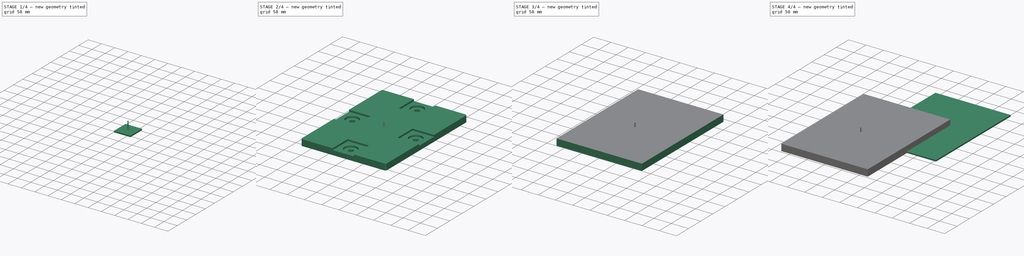
[diagram: build sequence overview — one tinted view per stage of 4, left to right]
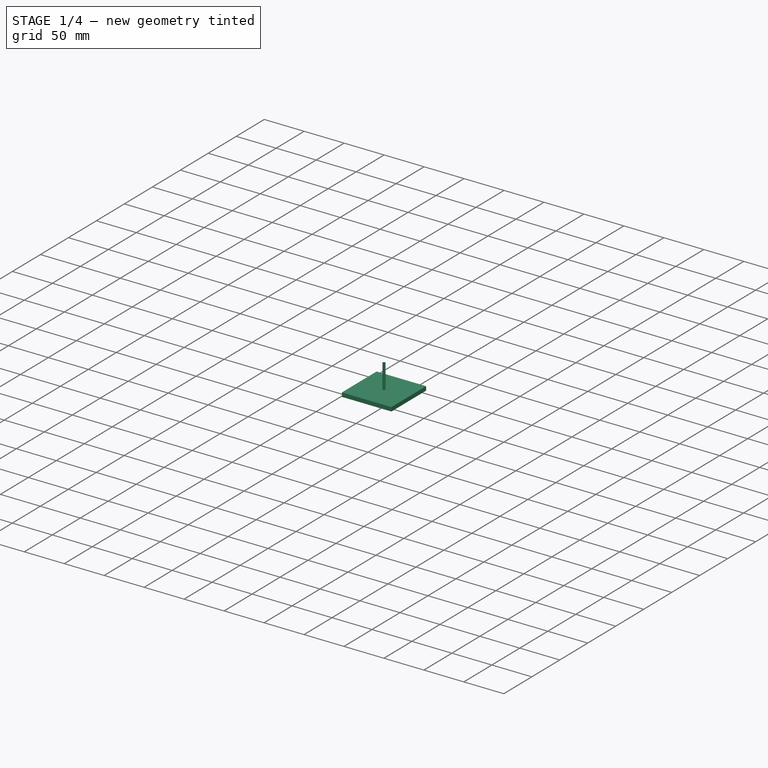
[diagram: stage 1 of 4 — iso view after this stage's code; geometry added in this stage tinted green]
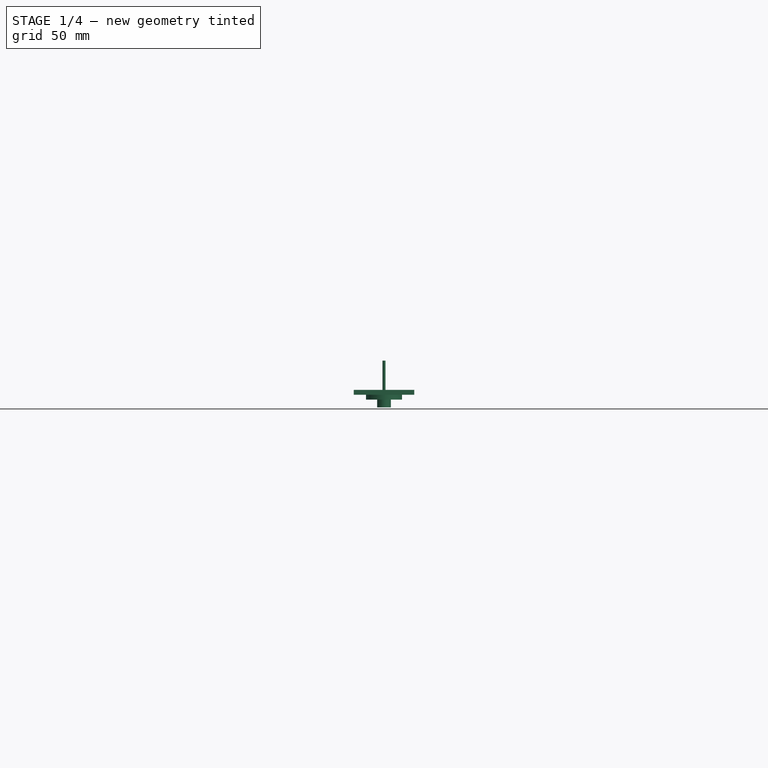
[diagram: stage 1 of 4 — front view after this stage's code; geometry added in this stage tinted green]
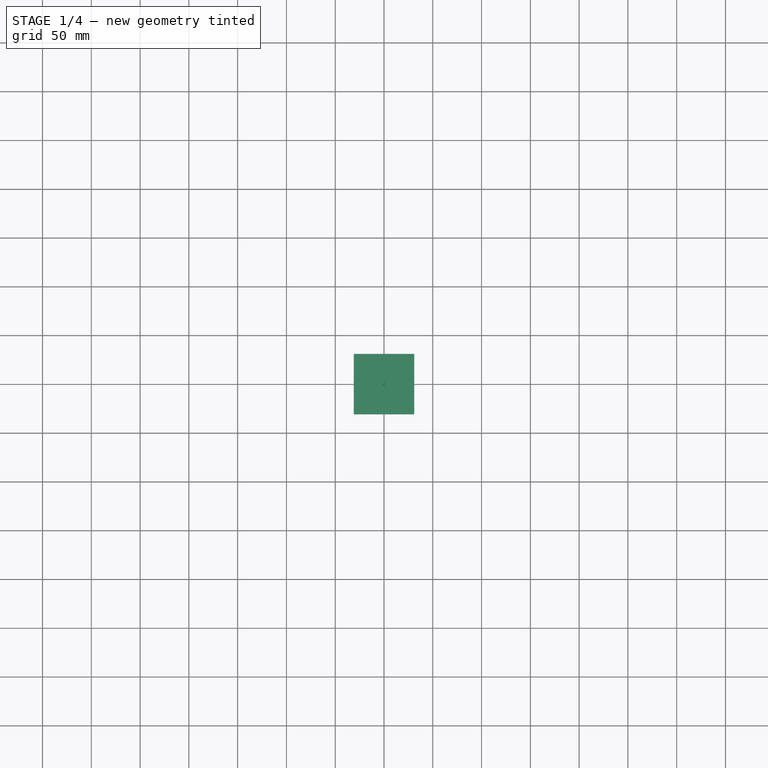
[diagram: stage 1 of 4 — top view after this stage's code; geometry added in this stage tinted green]
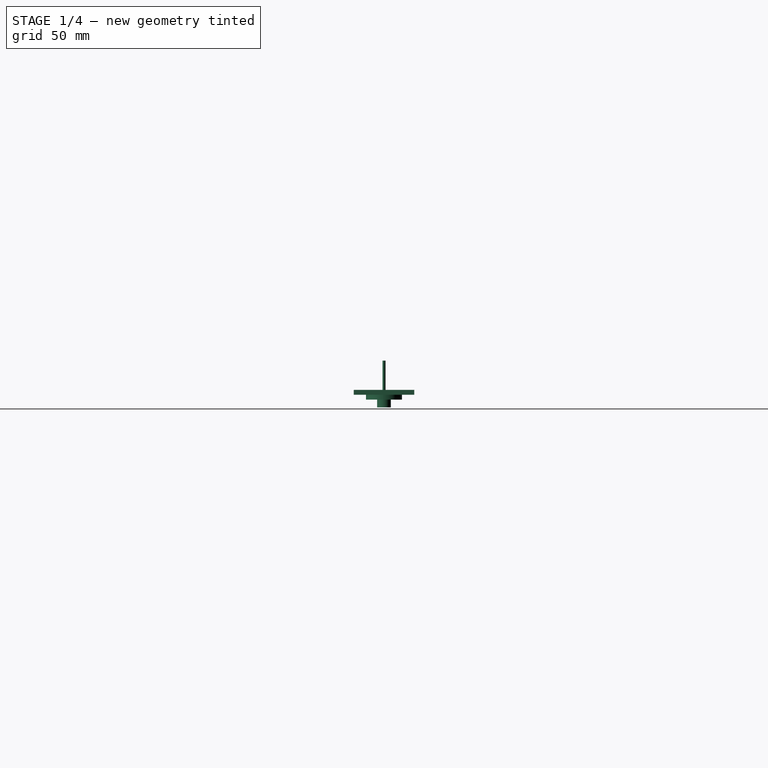
[diagram: stage 1 of 4 — right view after this stage's code; geometry added in this stage tinted green]
FCSTD DOCUMENT  (FreeCAD 0.21R32532 (Git))
Label: Крепеж_аккумулятора
License: All rights reserved
LicenseURL: http://en.wikipedia.org/wiki/All_rights_reserved
objects: Path::FeaturePython×14, Part::FeaturePython×13, App::DocumentObjectGroup×6, Sketcher::SketchObject×5, PartDesign::Pad×3, PartDesign::Body×3, Part::Mirroring×2, Part::Compound×2, PartDesign::SubShapeBinder×2, App::FeaturePython×2, PartDesign::Revolution×1, PartDesign::Boolean×1, PartDesign::Hole×1
note: 44 computed .brp shape members not serialized (recipe doc carries the construction recipe); baked Part::Feature solids carry a one-line shape summary decoded from their .brp

FEATURE [Sketcher::SketchObject] Sketch001
  FullyConstrained = true
  MapMode = 5
  Support = -> [XY_Plane001]
  sketch-geometry (5):
    g0: LineSegment StartX=-31 StartY=-31 StartZ=0 EndX=-31 EndY=31 EndZ=0
    g1: LineSegment StartX=-31 StartY=31 StartZ=0 EndX=31 EndY=31 EndZ=0
    g2: LineSegment StartX=31 StartY=31 StartZ=0 EndX=31 EndY=-31 EndZ=0
    g3: LineSegment StartX=31 StartY=-31 StartZ=0 EndX=-31 EndY=-31 EndZ=0
    g4: GeomPoint X=0 Y=0 Z=0
  constraints (12):
    c: Coincident(g0,g1)
    c: Coincident(g1,g2)
    c: Coincident(g2,g3)
    c: Coincident(g3,g0)
    c: Horizontal(g1)
    c: Horizontal(g3)
    c: Vertical(g0)
    c: Vertical(g2)
    c: Symmetric(g1,g0,g4)
    c: Coincident(g4,g-1)
    c: DistanceX(g1,g1) = 62
    c: Equal(g2,g1)
FEATURE [PartDesign::Pad] Pad001
  Direction = (0,0,1)
  Length = 5
  Length2 = 10
  Profile = -> Sketch001
  ReferenceAxis = -> Sketch001 [N_Axis]
  Reversed = true
  Type = 0
FEATURE [Sketcher::SketchObject] Sketch002
  FullyConstrained = true
  MapMode = 5
  Placement = pos=(0,0,0) rot=(1,0,0;1.5708rad)
  Support = -> [XZ_Plane001]
  sketch-geometry (6):
    g0: LineSegment StartX=0 StartY=9.1482e-12 StartZ=0 EndX=18.5 EndY=9.1482e-12 EndZ=0
    g1: LineSegment StartX=7 StartY=-18 StartZ=0 EndX=0 EndY=-18 EndZ=0
    g2: LineSegment StartX=0 StartY=-18 StartZ=0 EndX=0 EndY=9.1482e-12 EndZ=0
    g3: LineSegment StartX=18.5 StartY=9.1482e-12 StartZ=0 EndX=18.5 EndY=-10 EndZ=0
    g4: LineSegment StartX=18.5 StartY=-10 StartZ=0 EndX=7 EndY=-10 EndZ=0
    g5: LineSegment StartX=7 StartY=-10 StartZ=0 EndX=7 EndY=-18 EndZ=0
  constraints (17):
    c: Coincident(g0,g3)
    c: Coincident(g5,g1)
    c: Coincident(g1,g2)
    c: Coincident(g2,g0)
    c: Horizontal(g0)
    c: Horizontal(g1)
    c: Vertical(g2)
    c: Coincident(g0,g-1)
    c: Coincident(g3,g4)
    c: Vertical(g3)
    c: Coincident(g4,g5)
    c: Vertical(g5)
    c: Horizontal(g4)
    c: DistanceX(g4) = 7
    c: DistanceX(g3) = 18.5
    c: DistanceY(g1) = -18
    c: DistanceY(g3,g3) = -10
FEATURE [PartDesign::Revolution] Revolution
  Angle = 360
  Axis = (0,-2e-16,1)
  Base = (0,0,0)
  BaseFeature = -> Pad001
  Profile = -> Sketch002
  ReferenceAxis = -> Sketch002 [V_Axis]
  Reversed = true
FEATURE [App::DocumentObjectGroup] Model001
  Group = -> [Clone001]
FEATURE [Part::FeaturePython] ToolBit001  label="3.175mm Endmill003"  # Path/CAM toolbit (typed FeaturePython)
  BitPropertyNames = Chipload | CuttingEdgeHeight | Diameter | Flutes | Length | Material | ShankDiameter | SpindleDirection
  BitShape = <path>
  Chipload = 0
  CuttingEdgeHeight = 30
  Diameter = 3.17
  Flutes = 0
  Length = 10
  Material = 0
  ShankDiameter = 3
  ShapeName = endmill
  SpindleDirection = 0
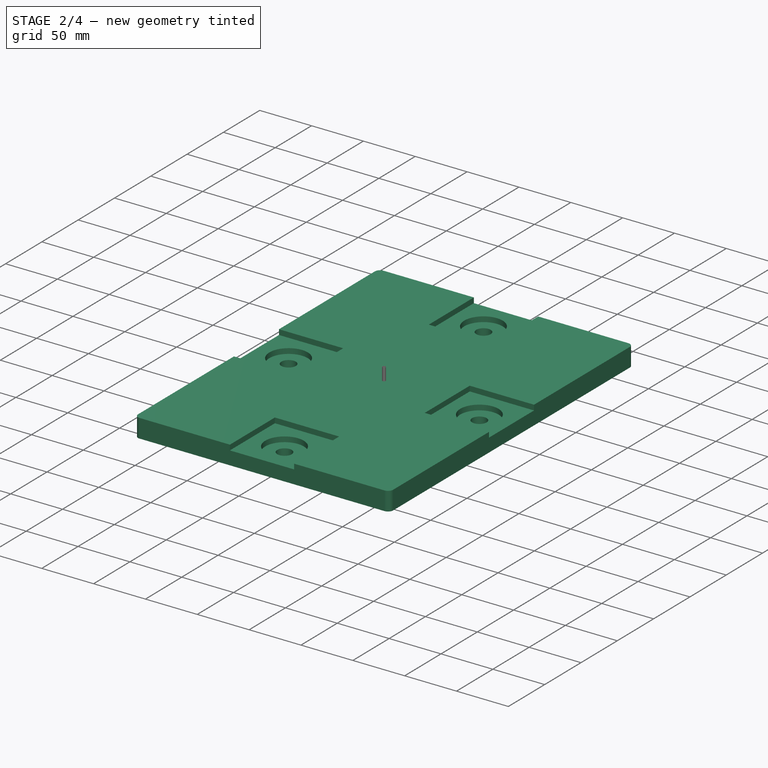
[diagram: stage 2 of 4 — iso view after this stage's code; geometry added in this stage tinted green]
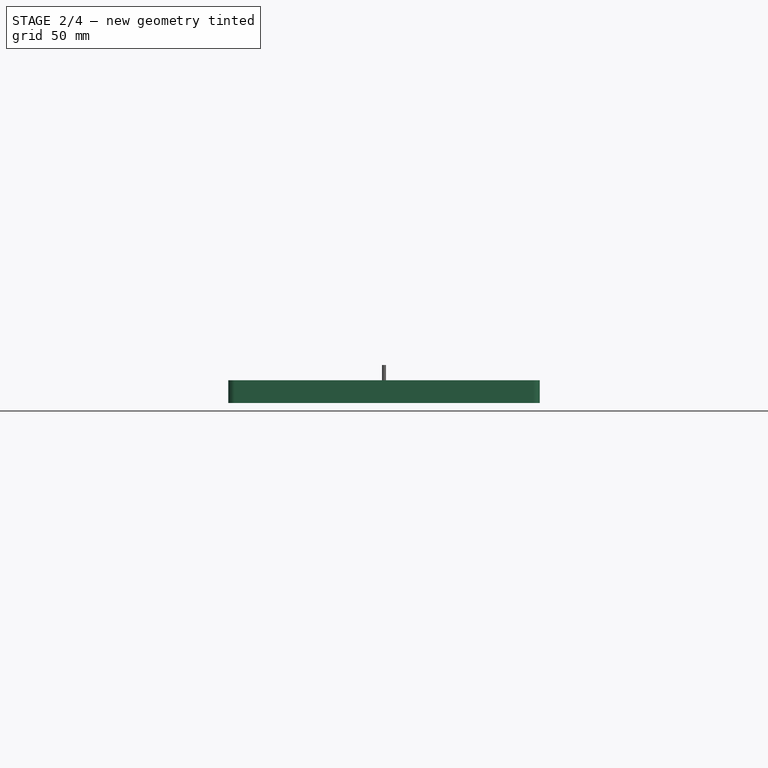
[diagram: stage 2 of 4 — front view after this stage's code; geometry added in this stage tinted green]
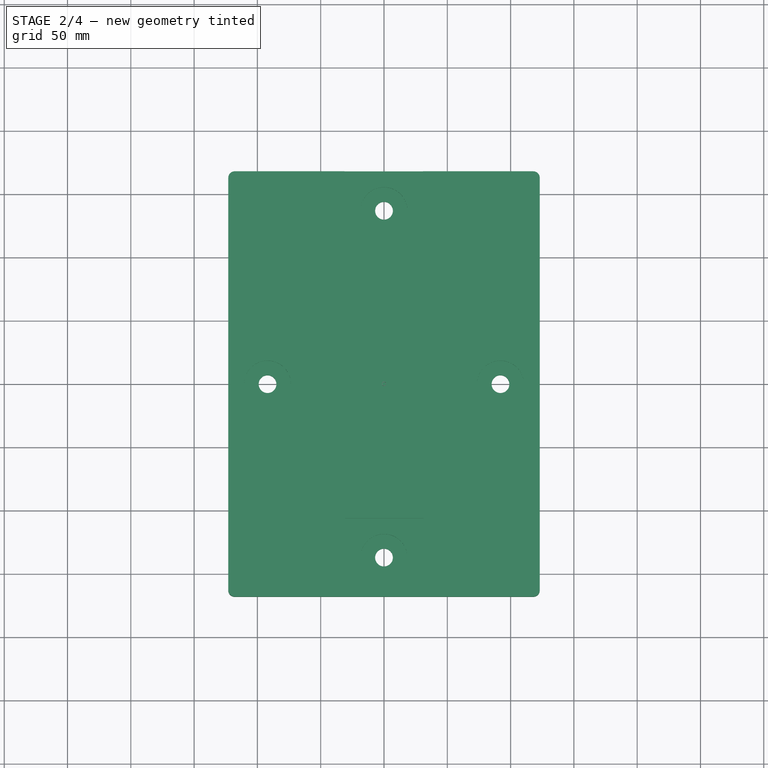
[diagram: stage 2 of 4 — top view after this stage's code; geometry added in this stage tinted green]
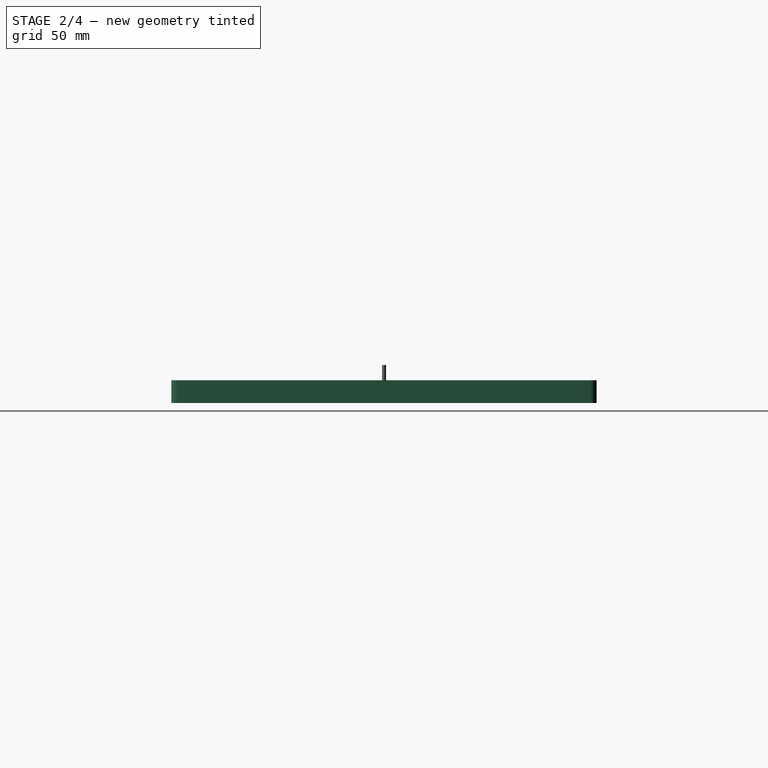
[diagram: stage 2 of 4 — right view after this stage's code; geometry added in this stage tinted green]
FEATURE [Sketcher::SketchObject] Sketch
  FullyConstrained = true
  MapMode = 5
  Support = -> [XY_Plane]
  sketch-geometry (10):
    g0: ArcOfCircle CenterX=-118 CenterY=-163 CenterZ=0 NormalX=0 NormalY=0 NormalZ=1 AngleXU=0 Radius=5 StartAngle=3.14159 EndAngle=4.71239
    g1: LineSegment StartX=-123 StartY=-163 StartZ=0 EndX=-123 EndY=163 EndZ=0
    g2: ArcOfCircle CenterX=-118 CenterY=163 CenterZ=0 NormalX=0 NormalY=0 NormalZ=1 AngleXU=0 Radius=5 StartAngle=1.5708 EndAngle=3.14159
    g3: LineSegment StartX=-118 StartY=168 StartZ=0 EndX=118 EndY=168 EndZ=0
    g4: ArcOfCircle CenterX=118 CenterY=163 CenterZ=0 NormalX=0 NormalY=0 NormalZ=1 AngleXU=0 Radius=5 StartAngle=-1.8e-15 EndAngle=1.5708
    g5: LineSegment StartX=123 StartY=163 StartZ=0 EndX=123 EndY=-163 EndZ=0
    g6: ArcOfCircle CenterX=118 CenterY=-163 CenterZ=0 NormalX=0 NormalY=0 NormalZ=1 AngleXU=0 Radius=5 StartAngle=4.71239 EndAngle=6.28319
    g7: LineSegment StartX=118 StartY=-168 StartZ=0 EndX=-118 EndY=-168 EndZ=0
    g8: GeomPoint X=-123 Y=-168 Z=0
    g9: GeomPoint X=123 Y=168 Z=0
  constraints (23):
    c: Tangent(g0,g1) = 1.5708
    c: Tangent(g1,g2) = 1.5708
    c: Tangent(g2,g3) = 1.5708
    c: Tangent(g3,g4) = 1.5708
    c: Tangent(g4,g5) = 1.5708
    c: Tangent(g5,g6) = 1.5708
    c: Tangent(g6,g7) = 1.5708
    c: Tangent(g7,g0) = 1.5708
    c: Horizontal(g3)
    c: Horizontal(g7)
    c: Vertical(g1)
    c: Vertical(g5)
    c: Equal(g0,g2)
    c: Equal(g2,g4)
    c: Equal(g4,g6)
    c: PointOnObject(g8,g1)
    c: PointOnObject(g8,g7)
    c: PointOnObject(g9,g3)
    c: PointOnObject(g9,g5)
    c: Symmetric(g9,g8,g-1)
    c: DistanceX(g8,g9) = 246
    c: DistanceY(g8,g9) = 336
    c: Radius(g4) = 5
FEATURE [PartDesign::Pad] Pad
  Direction = (0,0,1)
  Length = 18
  Length2 = 10
  Profile = -> Sketch
  ReferenceAxis = -> Sketch [N_Axis]
  Type = 0
FEATURE [PartDesign::Body] Body001
  Group = -> [Sketch001,Pad001,Sketch002,Revolution]
  Origin = -> Origin001
  Placement = pos=(0,0,18) rot=(0,0,1;0rad)
  Tip = -> Revolution
FEATURE [Part::FeaturePython] Placment  label="Custom"  # WARN: FeaturePython — macro-defined, semantics opaque (R4)
  ExposePlacement = true
  FlipZ = false
  Invert = false
  MarkerShape = 1
  MarkerSize = 20
  NumElements = 1
  Placement = pos=(92,0,0) rot=(0,0,1;0rad)
  PlacementChoice = 0
  Type = lattice2Placement.LatticePlacement
  isLattice = 1
FEATURE [Part::FeaturePython] Placment001  label="Custom001"  # WARN: FeaturePython — macro-defined, semantics opaque (R4)
  ExposePlacement = true
  FlipZ = false
  Invert = false
  MarkerShape = 1
  MarkerSize = 20
  NumElements = 1
  Placement = pos=(0,137,0) rot=(0,0,1;0rad)
  PlacementChoice = 0
  Type = lattice2Placement.LatticePlacement
  isLattice = 1
FEATURE [Part::FeaturePython] Join  # WARN: FeaturePython — macro-defined, semantics opaque (R4)
  ExposePlacement = false
  Interleave = false
  Links = -> [Placment,Placment001]
  MarkerShape = 1
  MarkerSize = 20
  NumElements = 2
  Type = lattice2JoinArrays.JoinArrays
  isLattice = 1
FEATURE [Part::FeaturePython] PolarArray  # WARN: FeaturePython — macro-defined, semantics opaque (R4)
  Alignment = 0
  AttacherType = Attacher::AttachEngine3D
  CellStart = A1
  Count = 2
  DistributionLaw = 0
  EndInclusive = false
  ExposePlacement = false
  FlipX = false
  FlipZ = false
  GeneratorMode = 0
  MarkerShape = 1
  MarkerSize = 0
  NumElements = 2
  OrientMode = 2
  Radius = 50
  Reverse = false
  SpanEnd = 360
  SpanStart = 0
  Step = 180
  Type = lattice2PolarArray2.PolarArray
  UseArcRadius = false
  UseArcRange = 0
  VSGVersion = 1
  Values = 0.0 | 180.0
  ValuesSource = 2
  isLattice = 1
FEATURE [Part::FeaturePython] Populate  label="Populate PolarArray with Join"  # WARN: FeaturePython — macro-defined, semantics opaque (R4)
  Copying = 0
  ExposePlacement = false
  MarkerShape = 1
  MarkerSize = 0
  NumElements = 4
  Object = -> Join
  OutputCompounding = 0
  PlacementsTo = -> PolarArray
  Referencing = 1
  Type = lattice2PopulateCopies.LatticePopulateCopies
  isLattice = 1
FEATURE [Part::FeaturePython] Populate001  label="Populate Populate PolarArray with Join with Body001"  # WARN: FeaturePython — macro-defined, semantics opaque (R4)
  Copying = 0
  ExposePlacement = false
  MarkerShape = 1
  MarkerSize = 0
  NumElements = 0
  Object = -> Body001
  OutputCompounding = 1
  PlacementsTo = -> Populate
  Referencing = 0
  Type = lattice2PopulateCopies.LatticePopulateCopies
  isLattice = 0
FEATURE [PartDesign::Boolean] Boolean
  BaseFeature = -> Pad
  Group = -> [Populate001]
  Type = 1
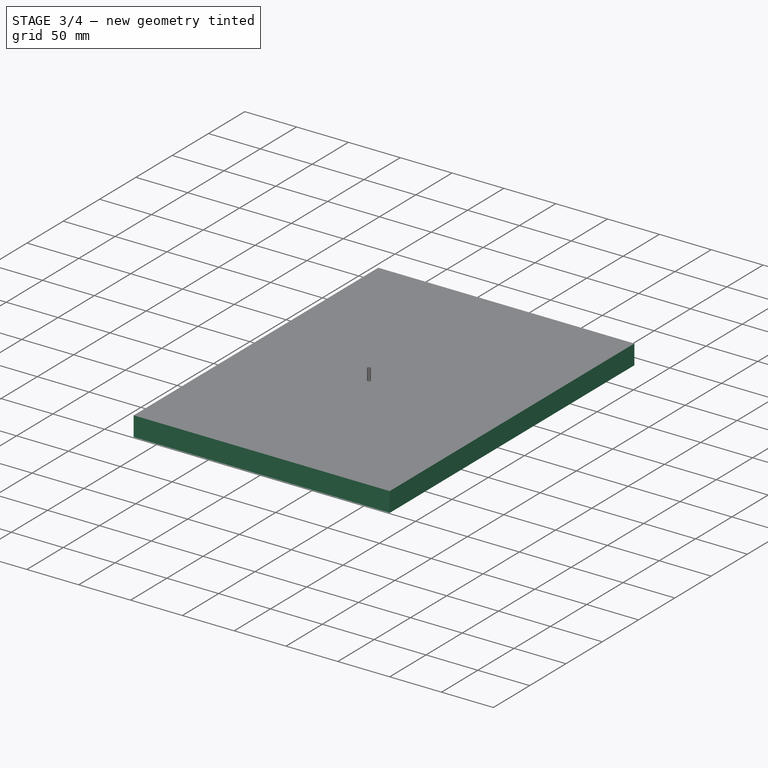
[diagram: stage 3 of 4 — iso view after this stage's code; geometry added in this stage tinted green]
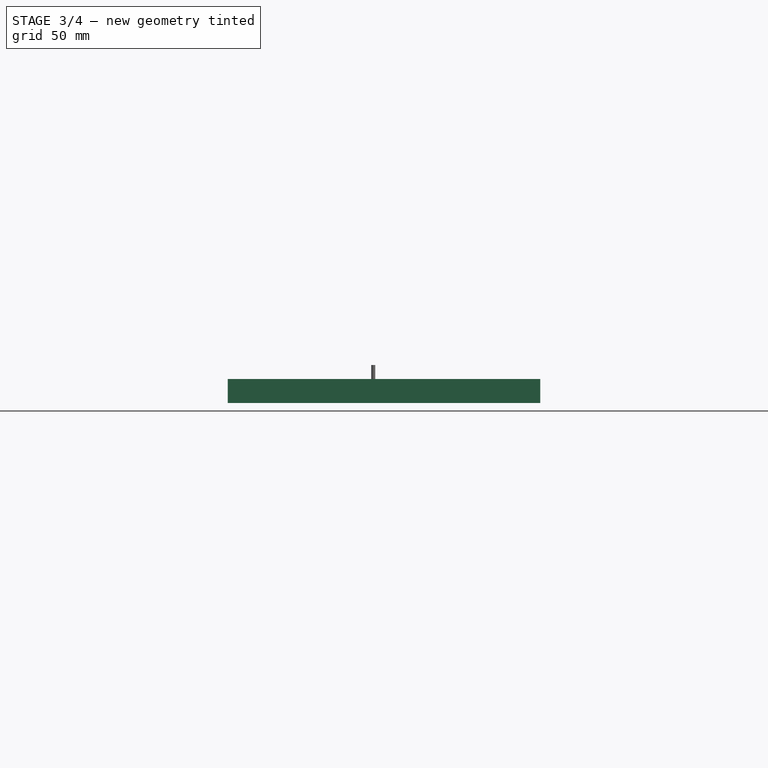
[diagram: stage 3 of 4 — front view after this stage's code; geometry added in this stage tinted green]
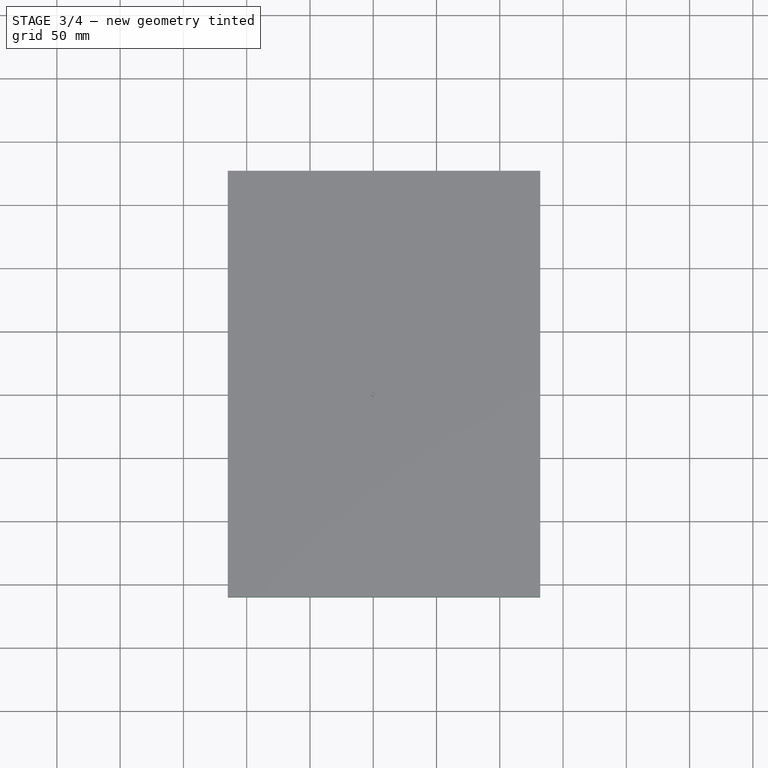
[diagram: stage 3 of 4 — top view after this stage's code; geometry added in this stage tinted green]
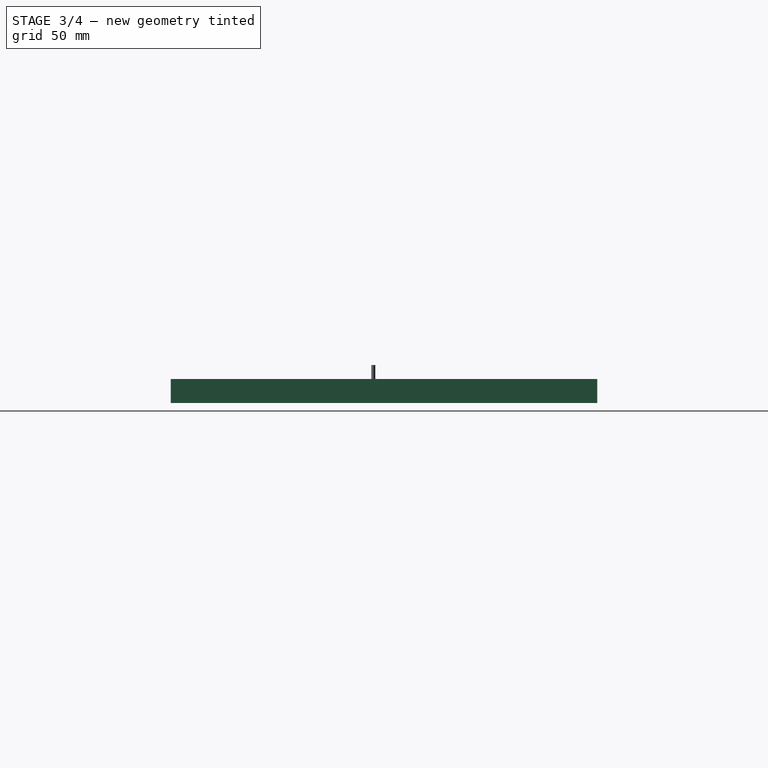
[diagram: stage 3 of 4 — right view after this stage's code; geometry added in this stage tinted green]
FEATURE [PartDesign::Body] Body
  Group = -> [Sketch,Pad,Boolean]
  Origin = -> Origin
  Tip = -> Boolean
FEATURE [Sketcher::SketchObject] Sketch004
  FullyConstrained = true
  sketch-geometry (1):
    g0: Circle CenterX=0 CenterY=0 CenterZ=0 NormalX=0 NormalY=0 NormalZ=1 AngleXU=0 Radius=7
  constraints (2):
    c: Coincident(g0,g-1)
    c: Diameter(g0) = 14
FEATURE [Part::FeaturePython] Populate002  label="Populate Populate PolarArray with Join with Sketch004"  # WARN: FeaturePython — macro-defined, semantics opaque (R4)
  Copying = 0
  ExposePlacement = false
  MarkerShape = 1
  MarkerSize = 0
  NumElements = 0
  Object = -> Sketch004
  OutputCompounding = 1
  PlacementsTo = -> Populate
  Referencing = 0
  Type = lattice2PopulateCopies.LatticePopulateCopies
  isLattice = 0
FEATURE [Sketcher::SketchObject] Sketch003
  ExternalGeometry = -> [Populate002]
  FullyConstrained = true
  sketch-geometry (12):
    g0: LineSegment StartX=0 StartY=152 StartZ=0 EndX=10 EndY=152 EndZ=0
    g1: LineSegment StartX=30 StartY=132 StartZ=0 EndX=30 EndY=80 EndZ=0
    g2: LineSegment StartX=40 StartY=70 StartZ=0 EndX=87 EndY=70 EndZ=0
    g3: LineSegment StartX=107 StartY=50 StartZ=0 EndX=107 EndY=0 EndZ=0
    g4: ArcOfCircle CenterX=10 CenterY=132 CenterZ=0 NormalX=0 NormalY=0 NormalZ=1 AngleXU=0 Radius=20 StartAngle=-3.6e-15 EndAngle=1.5708
    g5: GeomPoint X=30 Y=152 Z=0
    g6: ArcOfCircle CenterX=87 CenterY=50 CenterZ=0 NormalX=0 NormalY=0 NormalZ=1 AngleXU=0 Radius=20 StartAngle=-1.856e-13 EndAngle=1.5708
    g7: GeomPoint X=107 Y=70 Z=0
    g8: GeomPoint X=0 Y=-152 Z=0
    g9: GeomPoint X=-107 Y=0 Z=0
    g10: ArcOfCircle CenterX=40 CenterY=80 CenterZ=0 NormalX=0 NormalY=0 NormalZ=1 AngleXU=0 Radius=10 StartAngle=3.14159 EndAngle=4.71239
    g11: GeomPoint X=30 Y=70 Z=0
  constraints (27):
    c: PointOnObject(g0,g-2)
    c: Horizontal(g0)
    c: Vertical(g1)
    c: Horizontal(g2)
    c: PointOnObject(g3,g-1)
    c: Vertical(g3)
    c: PointOnObject(g5,g0)
    c: PointOnObject(g5,g1)
    c: Tangent(g0,g4) = 1.5708
    c: Tangent(g1,g4) = 1.5708
    c: PointOnObject(g7,g2)
    c: PointOnObject(g7,g3)
    c: Tangent(g2,g6) = 1.5708
    c: Tangent(g3,g6) = 1.5708
    c: Equal(g6,g4)
    c: Radius(g6) = 20
    c: Symmetric(g3,g9,g-2)
    c: Symmetric(g0,g8,g-1)
    c: PointOnObject(g11,g1)
    c: PointOnObject(g11,g2)
    c: Tangent(g1,g10) = -1.5708
    c: Tangent(g2,g10) = -1.5708
    c: Radius(g10) = 10
    c: DistanceX(g-3,g3) = 15
    c: DistanceY(g-4,g0) = 15
    c: DistanceY(g-3,g11) = 70
    c: DistanceX(g-4,g11) = 30
FEATURE [Part::Mirroring] Part__Mirroring  label="Sketch003 (Mirror #1)"
  Base = (0,0,0)
  Normal = (1,0,0)
  Source = -> Sketch003
FEATURE [Part::Compound] Compound
  Links = -> [Part__Mirroring,Sketch003]
FEATURE [Part::Mirroring] Part__Mirroring001  label="Compound (Mirror #2)"
  Base = (0,0,0)
  Normal = (0,1,0)
  Source = -> Compound
FEATURE [Part::Compound] Compound001
  Links = -> [Part__Mirroring001,Compound]
FEATURE [PartDesign::SubShapeBinder] Binder
  BindCopyOnChange = 0
  BindMode = 0
  ClaimChildren = true
  Context = -> Body002 [Binder.]
  Fuse = false
  MakeFace = true
  OffsetFill = false
  OffsetIntersection = false
  OffsetJoinType = 0
  OffsetOpenResult = false
  PartialLoad = false
  Relative = true
  Support = -> [Compound001]
  _Version = 2
FEATURE [PartDesign::Pad] Pad002
  Direction = (0,0,1)
  Length = 3
  Length2 = 10
  Profile = -> Binder
  Type = 0
FEATURE [App::DocumentObjectGroup] Model
  Group = -> [Clone]
FEATURE [Part::FeaturePython] ToolBit  label="3.175mm Endmill"  # Path/CAM toolbit (typed FeaturePython)
  BitPropertyNames = Chipload | CuttingEdgeHeight | Diameter | Flutes | Length | Material | ShankDiameter | SpindleDirection
  BitShape = <path>
  Chipload = 0
  CuttingEdgeHeight = 30
  Diameter = 3.17
  Flutes = 0
  Length = 10
  Material = 0
  ShankDiameter = 3
  ShapeName = endmill
  SpindleDirection = 0
FEATURE [Path::FeaturePython] Profile  # Path/CAM operation (typed FeaturePython)
  Active = true
  AreaParams:
    Tolerance = 1e-07
    FitArcs = True
    Simplify = False
    CleanDistance = 0.0
    Accuracy = 0.01
    Unit = 1.0
    MinArcPoints = 4
    MaxArcPoints = 100
    ClipperScale = 10000000.0
    Fill = 0
    Coplanar = 0
    Reorient = True
    Outline = False
    Explode = False
    OpenMode = 0
    Deflection = 0.01
    SubjectFill = 0
    ClipFill = 0
    Offset = -1.585
    ExtraPass = 0
    Stepover = 0.0
    LastStepover = 0.0
    JoinType = 0
    EndType = 0
    MiterLimit = 2.0
    RoundPrecision = 0.0
    PocketMode = 0
    ToolRadius = 1.0
    PocketExtraOffset = 0.0
    PocketStepover = 0.0
    PocketLastStepover = 0.0
    FromCenter = False
    Angle = 45.0
    AngleShift = 0.0
    Shift = 0.0
    Thicken = False
    SectionCount = -1
    Stepdown = 1.0
    SectionOffset = 0.0
    SectionTolerance = 1e-07
    SectionMode = 2
    Project = False
  Base = -> [Clone]
  ClearanceHeight = 9
  CoolantMode = 0
  CycleTime = 00:00:29
  Direction = 1
  FinalDepth = -0.1
  HandleMultipleFeatures = 0
  JoinType = 0
  MiterLimit = 0.1
  OffsetExtra = 0
  OpFinalDepth = 0
  OpStartDepth = 4
  OpStockZMax = 4
  OpStockZMin = 0
  OpToolDiameter = 3.17
  PathParams = {'orientation': 1, 'feedrate': 33.333333333333336, 'feedrate_v': 8.333333333333334, 'verbose': True, 'resume_height': 7.0, 'retraction': 9.0, 'return_end': True, 'preamble': False, 'start': Vector (104.12031928224049, 284.41675744657636, 9.0)}
  SafeHeight = 7
  Side = 0
  SplitArcs = false
  StartDepth = 3
  StartPoint = (0,0,0)
  StepDown = 4
  ToolController = -> __175mm_Endmill
  UseComp = true
  UseStartPoint = false
  processCircles = true
  processHoles = true
  processPerimeter = false
  expr: ClearanceHeight = OpStockZMax + SetupSheet.ClearanceHeightOffset
  expr: FinalDepth = -0.1 mm
  expr: SafeHeight = OpStockZMax + SetupSheet.SafeHeightOffset
  expr: StartDepth = 3 mm
  expr: StepDown = 4 mm
FEATURE [Path::FeaturePython] Profile001  # Path/CAM operation (typed FeaturePython)
  Active = true
  AreaParams:
    Tolerance = 1e-07
    FitArcs = True
    Simplify = False
    CleanDistance = 0.0
    Accuracy = 0.01
    Unit = 1.0
    MinArcPoints = 4
    MaxArcPoints = 100
    ClipperScale = 10000000.0
    Fill = 0
    Coplanar = 0
    Reorient = True
    Outline = False
    Explode = False
    OpenMode = 0
    Deflection = 0.01
    SubjectFill = 0
    ClipFill = 0
    Offset = 1.585
    ExtraPass = 0
    Stepover = 0.0
    LastStepover = 0.0
    JoinType = 0
    EndType = 0
    MiterLimit = 2.0
    RoundPrecision = 0.0
    PocketMode = 0
    ToolRadius = 1.0
    PocketExtraOffset = 0.0
    PocketStepover = 0.0
    PocketLastStepover = 0.0
    FromCenter = False
    Angle = 45.0
    AngleShift = 0.0
    Shift = 0.0
    Thicken = False
    SectionCount = -1
    Stepdown = 1.0
    SectionOffset = 0.0
    SectionTolerance = 1e-07
    SectionMode = 2
    Project = False
  ClearanceHeight = 9
  CoolantMode = 0
  CycleTime = 00:00:38
  Direction = 1
  FinalDepth = -0.1
  HandleMultipleFeatures = 0
  JoinType = 0
  MiterLimit = 0.1
  OffsetExtra = 0
  OpFinalDepth = 0
  OpStartDepth = 4
  OpStockZMax = 4
  OpStockZMin = 0
  OpToolDiameter = 3.17
  PathParams = {'orientation': 0, 'feedrate': 33.333333333333336, 'feedrate_v': 8.333333333333334, 'verbose': True, 'resume_height': 7.0, 'retraction': 9.0, 'return_end': True, 'preamble': False}
  SafeHeight = 7
  Side = 0
  SplitArcs = false
  StartDepth = 3
  StartPoint = (0,0,0)
  StepDown = 4
  ToolController = -> __175mm_Endmill
  UseComp = true
  UseStartPoint = false
  processCircles = true
  processHoles = true
  processPerimeter = true
  expr: ClearanceHeight = OpStockZMax + SetupSheet.ClearanceHeightOffset
  expr: FinalDepth = -0.1 mm
  expr: SafeHeight = OpStockZMax + SetupSheet.SafeHeightOffset
  expr: StartDepth = 3 mm
  expr: StepDown = 4 mm
FEATURE [App::DocumentObjectGroup] Operations
  Group = -> [Profile,Profile001]
FEATURE [Path::FeaturePython] Job  # Path/CAM operation (typed FeaturePython)
  CycleTime = 00:01:07
  Fixtures = G54
  GeometryTolerance = 0.01
  JobType = 0
  LastPostProcessDate = 2023-05-29 15:26:18.113016
  LastPostProcessOutput = <userpath>/0744-27F3/1.tap \n<userpath>/0744-27F3/2.tap
  Model = -> Model
  Operations = -> Operations
  OrderOutputBy = 2
  PostProcessor = 1
  PostProcessorOutputFile = %d.%j.tap
  SetupSheet = -> SetupSheet
  SplitOutput = true
  Stock = -> Stock
  Tools = -> Tools
FEATURE [App::FeaturePython] SetupSheet001  # Path/CAM operation (typed FeaturePython)
  ClearanceHeightExpression = OpStockZMax+SetupSheet001.ClearanceHeightOffset
  ClearanceHeightOffset = 5
  CoolantMode = 0
  CoolantModes = None | Flood | Mist
  FinalDepthExpression = OpFinalDepth
  HorizRapid = 0
  ProfileDirection = 1
  ProfileprocessCircles = true
  ProfileprocessHoles = true
  ProfileprocessPerimeter = true
  SafeHeightExpression = OpStockZMax+SetupSheet001.SafeHeightOffset
  SafeHeightOffset = 3
  StartDepthExpression = OpStartDepth
  StepDownExpression = OpToolDiameter
  VertRapid = 0
FEATURE [Part::FeaturePython] Clone001  label="Model-Body"  # Draft clone (typed FeaturePython)
  AttacherType = Attacher::AttachEngine3D
  Fuse = false
  Objects = -> [Body]
  PathResource = Model
  Placement = pos=(123,168,0) rot=(0,0,1;0rad)
  Scale = (1,1,1)
FEATURE [Path::FeaturePython] __175mm_Endmill001  label="3.175mm Endmill002"  # Path/CAM operation (typed FeaturePython)
  HorizFeed = 51.6667
  HorizRapid = 0
  SpindleDir = 0
  SpindleSpeed = 18000
  Tool = -> ToolBit001
  ToolNumber = 1
  VertFeed = 16.6667
  VertRapid = 0
  expr: HorizRapid = SetupSheet001.HorizRapid
  expr: VertRapid = SetupSheet001.VertRapid
FEATURE [App::DocumentObjectGroup] Tools001
  Group = -> [__175mm_Endmill001]
FEATURE [Part::FeaturePython] Stock001  # WARN: FeaturePython — macro-defined, semantics opaque (R4)
  Base = -> Model001
  ExtXneg = 0
  ExtXpos = 1
  ExtYneg = 0
  ExtYpos = 1
  ExtZneg = 0
  ExtZpos = 1
  Placement = pos=(-115,-160,0) rot=(0,0,1;0rad)
  StockType = FromBase
FEATURE [Path::FeaturePython] Profile002  # Path/CAM operation (typed FeaturePython)
  Active = true
  AreaParams:
    Tolerance = 1e-07
    FitArcs = True
    Simplify = False
    CleanDistance = 0.0
    Accuracy = 0.01
    Unit = 1.0
    MinArcPoints = 4
    MaxArcPoints = 100
    ClipperScale = 10000000.0
    Fill = 0
    Coplanar = 0
    Reorient = True
    Outline = False
    Explode = False
    OpenMode = 0
    Deflection = 0.01
    SubjectFill = 0
    ClipFill = 0
    Offset = -1.585
    ExtraPass = 0
    Stepover = 0.0
    LastStepover = 0.0
    JoinType = 0
    EndType = 0
    MiterLimit = 2.0
    RoundPrecision = 0.0
    PocketMode = 0
    ToolRadius = 1.0
    PocketExtraOffset = 0.0
    PocketStepover = 0.0
    PocketLastStepover = 0.0
    FromCenter = False
    Angle = 45.0
    AngleShift = 0.0
    Shift = 0.0
    Thicken = False
    SectionCount = -1
    Stepdown = 1.0
    SectionOffset = 0.0
    SectionTolerance = 1e-07
    SectionMode = 2
    Project = False
  Base = -> [Clone001]
  ClearanceHeight = 24
  CoolantMode = 0
  CycleTime = 00:00:32
  Direction = 1
  FinalDepth = 0
  HandleMultipleFeatures = 0
  JoinType = 0
  MiterLimit = 0.1
  OffsetExtra = 0
  OpFinalDepth = 0
  OpStartDepth = 19
  OpStockZMax = 19
  OpStockZMin = 0
  OpToolDiameter = 3.17
  PathParams = {'orientation': 1, 'feedrate': 51.666666666666664, 'feedrate_v': 16.666666666666668, 'verbose': True, 'resume_height': 22.0, 'retraction': 24.0, 'return_end': True, 'preamble': False, 'start': Vector (120.1203192822405, 300.41675744657636, 24.0)}
  SafeHeight = 22
  Side = 0
  SplitArcs = false
  StartDepth = 19
  StartPoint = (0,0,0)
  StepDown = 3.17
  ToolController = -> __175mm_Endmill001
  UseComp = true
  UseStartPoint = false
  processCircles = true
  processHoles = true
  processPerimeter = false
  expr: ClearanceHeight = OpStockZMax + SetupSheet001.ClearanceHeightOffset
  expr: FinalDepth = OpFinalDepth
  expr: SafeHeight = OpStockZMax + SetupSheet001.SafeHeightOffset
  expr: StartDepth = OpStartDepth
  expr: StepDown = OpToolDiameter
FEATURE [Path::FeaturePython] MillFace  # Path/CAM operation (typed FeaturePython)
  Active = true
  AreaParams:
    Tolerance = 1e-07
    FitArcs = True
    Simplify = False
    CleanDistance = 0.0
    Accuracy = 0.01
    Unit = 1.0
    MinArcPoints = 4
    MaxArcPoints = 100
    ClipperScale = 10000000.0
    Fill = 0
    Coplanar = 0
    Reorient = True
    Outline = False
    Explode = False
    OpenMode = 0
    Deflection = 0.01
    SubjectFill = 0
    ClipFill = 0
    Offset = 0.0
    ExtraPass = 0
    Stepover = 0.0
    LastStepover = 0.0
    JoinType = 0
    EndType = 0
    MiterLimit = 2.0
    RoundPrecision = 0.0
    PocketMode = 2
    ToolRadius = 1.585
    PocketExtraOffset = 0.0
    PocketStepover = 1.585
    PocketLastStepover = 0.0
    FromCenter = True
    Angle = 45.0
    AngleShift = 0.0
    Shift = 0.0
    Thicken = False
    SectionCount = -1
    Stepdown = 1.0
    SectionOffset = 0.0
    SectionTolerance = 1e-07
    SectionMode = 2
    Project = False
  Base = -> [Clone001]
  BoundaryShape = 1
  ClearEdges = false
  ClearanceHeight = 24
  CoolantMode = 0
  CutMode = 0
  CycleTime = 00:00:51
  ExcludeRaisedAreas = false
  ExtraOffset = 0
  FinalDepth = 13
  FinishDepth = 0
  KeepToolDown = true
  MinTravel = false
  OffsetPattern = 1
  OpFinalDepth = 13
  OpStartDepth = 19
  OpStockZMax = 19
  OpStockZMin = 0
  OpToolDiameter = 3.17
  PathParams:
    orientation = 1
    feedrate = 51.666666666666664
    feedrate_v = 16.666666666666668
    verbose = True
    resume_height = 22.0
    retraction = 24.0
    return_end = True
    preamble = False
    threshold = 3.171585
  PocketLastStepOver = 0
  SafeHeight = 22
  SplitArcs = false
  StartAt = 0
  StartDepth = 19
  StartPoint = (0,0,0)
  StepDown = 10
  StepOver = 50
  ToolController = -> __175mm_Endmill001
  UseStartPoint = false
  ZigZagAngle = 45
  expr: ClearanceHeight = OpStockZMax + SetupSheet001.ClearanceHeightOffset
  expr: FinalDepth = OpFinalDepth
  expr: SafeHeight = OpStockZMax + SetupSheet001.SafeHeightOffset
  expr: StartDepth = OpStartDepth
  expr: StepDown = 10
FEATURE [Path::FeaturePython] MillFace001  # Path/CAM operation (typed FeaturePython)
  Active = true
  AreaParams:
    Tolerance = 1e-07
    FitArcs = True
    Simplify = False
    CleanDistance = 0.0
    Accuracy = 0.01
    Unit = 1.0
    MinArcPoints = 4
    MaxArcPoints = 100
    ClipperScale = 10000000.0
    Fill = 0
    Coplanar = 0
    Reorient = True
    Outline = False
    Explode = False
    OpenMode = 0
    Deflection = 0.01
    SubjectFill = 0
    ClipFill = 0
    Offset = 0.0
    ExtraPass = 0
    Stepover = 0.0
    LastStepover = 0.0
    JoinType = 0
    EndType = 0
    MiterLimit = 2.0
    RoundPrecision = 0.0
    PocketMode = 2
    ToolRadius = 1.585
    PocketExtraOffset = 0.0
    PocketStepover = 1.585
    PocketLastStepover = 0.0
    FromCenter = True
    Angle = 45.0
    AngleShift = 0.0
    Shift = 0.0
    Thicken = False
    SectionCount = -1
    Stepdown = 1.0
    SectionOffset = 0.0
    SectionTolerance = 1e-07
    SectionMode = 2
    Project = False
  Base = -> [Clone001]
  BoundaryShape = 1
  ClearEdges = false
  ClearanceHeight = 24
  CoolantMode = 0
  CutMode = 0
  CycleTime = 00:00:13
  ExcludeRaisedAreas = false
  ExtraOffset = 0
  FinalDepth = 8
  FinishDepth = 0
  KeepToolDown = true
  MinTravel = true
  OffsetPattern = 1
  OpFinalDepth = 8
  OpStartDepth = 19
  OpStockZMax = 19
  OpStockZMin = 0
  OpToolDiameter = 3.17
  PathParams:
    orientation = 1
    feedrate = 51.666666666666664
    feedrate_v = 16.666666666666668
    verbose = True
    resume_height = 22.0
    retraction = 24.0
    return_end = True
    preamble = False
    threshold = 3.171585
  PocketLastStepOver = 0
  SafeHeight = 22
  SplitArcs = false
  StartAt = 0
  StartDepth = 19
  StartPoint = (0,0,0)
  StepDown = 20
  StepOver = 50
  ToolController = -> __175mm_Endmill001
  UseStartPoint = false
  ZigZagAngle = 45
  expr: ClearanceHeight = OpStockZMax + SetupSheet001.ClearanceHeightOffset
  expr: FinalDepth = OpFinalDepth
  expr: SafeHeight = OpStockZMax + SetupSheet001.SafeHeightOffset
  expr: StartDepth = OpStartDepth
FEATURE [Path::FeaturePython] Profile003  # Path/CAM operation (typed FeaturePython)
  Active = true
  AreaParams:
    Tolerance = 1e-07
    FitArcs = True
    Simplify = False
    CleanDistance = 0.0
    Accuracy = 0.01
    Unit = 1.0
    MinArcPoints = 4
    MaxArcPoints = 100
    ClipperScale = 10000000.0
    Fill = 0
    Coplanar = 0
    Reorient = True
    Outline = False
    Explode = False
    OpenMode = 0
    Deflection = 0.01
    SubjectFill = 0
    ClipFill = 0
    Offset = 1.585
    ExtraPass = 0
    Stepover = 0.0
    LastStepover = 0.0
    JoinType = 0
    EndType = 0
    MiterLimit = 2.0
    RoundPrecision = 0.0
    PocketMode = 0
    ToolRadius = 1.0
    PocketExtraOffset = 0.0
    PocketStepover = 0.0
    PocketLastStepover = 0.0
    FromCenter = False
    Angle = 45.0
    AngleShift = 0.0
    Shift = 0.0
    Thicken = False
    SectionCount = -1
    Stepdown = 1.0
    SectionOffset = 0.0
    SectionTolerance = 1e-07
    SectionMode = 2
    Project = False
  ClearanceHeight = 24
  CoolantMode = 0
  CycleTime = 00:02:26
  Direction = 1
  FinalDepth = 0
  HandleMultipleFeatures = 0
  JoinType = 0
  MiterLimit = 0.1
  OffsetExtra = 0
  OpFinalDepth = 0
  OpStartDepth = 19
  OpStockZMax = 19
  OpStockZMin = 0
  OpToolDiameter = 3.17
  PathParams = {'orientation': 0, 'feedrate': 51.666666666666664, 'feedrate_v': 16.666666666666668, 'verbose': True, 'resume_height': 22.0, 'retraction': 24.0, 'return_end': True, 'preamble': False}
  SafeHeight = 22
  Side = 0
  SplitArcs = false
  StartDepth = 19
  StartPoint = (0,0,0)
  StepDown = 3.17
  ToolController = -> __175mm_Endmill001
  UseComp = true
  UseStartPoint = false
  processCircles = true
  processHoles = true
  processPerimeter = true
  expr: ClearanceHeight = OpStockZMax + SetupSheet001.ClearanceHeightOffset
  expr: FinalDepth = OpFinalDepth
  expr: SafeHeight = OpStockZMax + SetupSheet001.SafeHeightOffset
  expr: StartDepth = OpStartDepth
  expr: StepDown = OpToolDiameter
FEATURE [Path::FeaturePython] DressupDogbone  # Path/CAM operation (typed FeaturePython)
  Base = -> MillFace
  Custom = 1
  Incision = 0
  Side = 1
  Style = 3
FEATURE [Path::FeaturePython] Array  # Path/CAM operation (typed FeaturePython)
  Active = true
  Angle = 0
  Base = -> [DressupDogbone,MillFace001]
  Centre = (0,0,0)
  Copies = 1
  CopiesX = 0
  CopiesY = 0
  JitterMagnitude = (0,0,0)
  JitterPercent = 0
  JitterSeed = 0
  Offset = (-92,137,0)
  SwapDirection = false
  ToolController = -> __175mm_Endmill001
  Type = 0
  expr: .Offset.x = -<<Custom>>.Placement.Base.x
  expr: .Offset.y = <<Custom001>>.Placement.Base.y
FEATURE [Path::FeaturePython] Array001  # Path/CAM operation (typed FeaturePython)
  Active = true
  Angle = 0
  Base = -> [DressupDogbone,MillFace001,Array]
  Centre = (0,0,0)
  Copies = 1
  CopiesX = 0
  CopiesY = 0
  JitterMagnitude = (0,0,0)
  JitterPercent = 0
  JitterSeed = 0
  Offset = (92,137,0)
  SwapDirection = false
  ToolController = -> __175mm_Endmill001
  Type = 0
  expr: .Offset.x = <<Custom>>.Placement.Base.x
  expr: .Offset.y = <<Custom001>>.Placement.Base.y
FEATURE [Path::FeaturePython] DressupTag  # Path/CAM operation (typed FeaturePython)
  Angle = 45
  Base = -> Profile003
  Height = 2.5
  Positions = (4) [(-1.58428,249.476,0),(-1.58283,86.4282,0),(247.584,86.5239,0),(247.583,249.572,0)]
  Radius = 0
  SegmentationFactor = 50
  Width = 10
FEATURE [App::DocumentObjectGroup] Operations001
  Group = -> [Profile002,DressupDogbone,MillFace001,Array,Array001,DressupTag]
FEATURE [Path::FeaturePython] Job001  # Path/CAM operation (typed FeaturePython)
  CycleTime = 00:04:02
  Fixtures = G54
  GeometryTolerance = 0.01
  JobType = 0
  LastPostProcessDate = 2023-05-29 15:07:04.928910
  LastPostProcessOutput = <userpath>/0744-27F3/1.tap
  Model = -> Model001
  Operations = -> Operations001
  OrderOutputBy = 0
  PostProcessor = 1
  PostProcessorOutputFile = %d.%j.tap
  SetupSheet = -> SetupSheet001
  SplitOutput = false
  Stock = -> Stock001
  Tools = -> Tools001
note: 2 file-system paths scrubbed to <path> (originals preserved in the JSON sidecar)
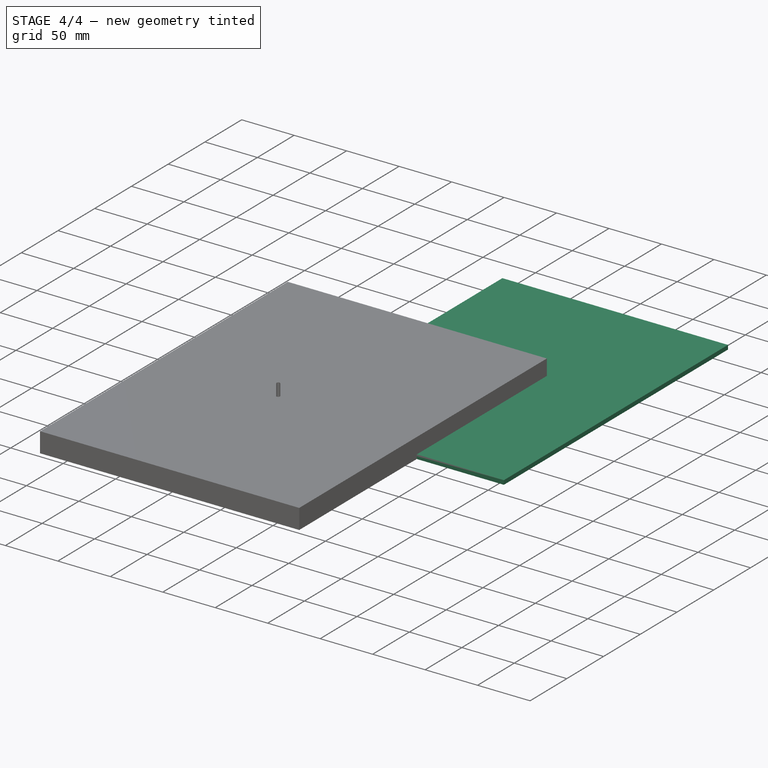
[diagram: stage 4 of 4 — iso view after this stage's code; geometry added in this stage tinted green]
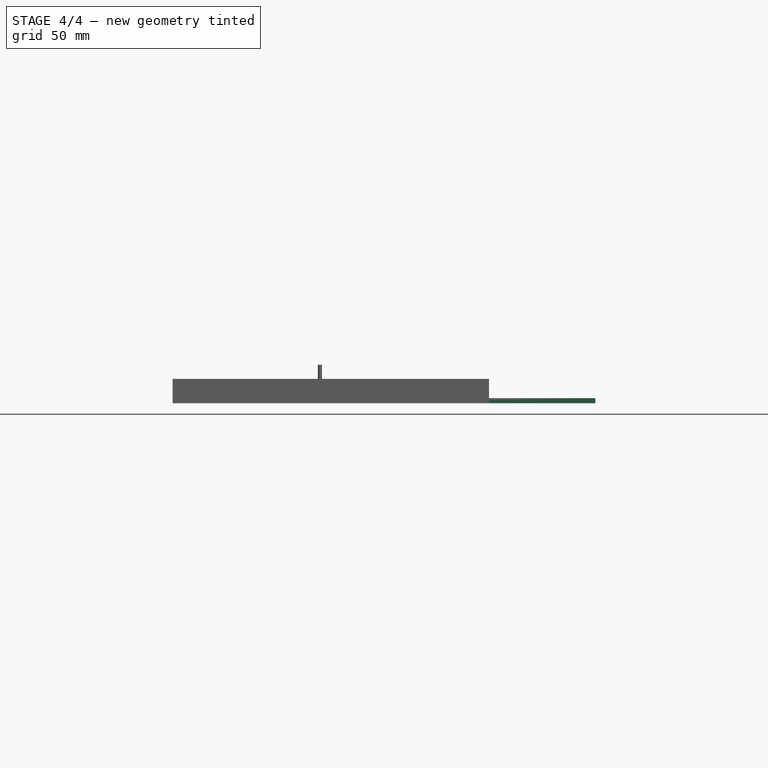
[diagram: stage 4 of 4 — front view after this stage's code; geometry added in this stage tinted green]
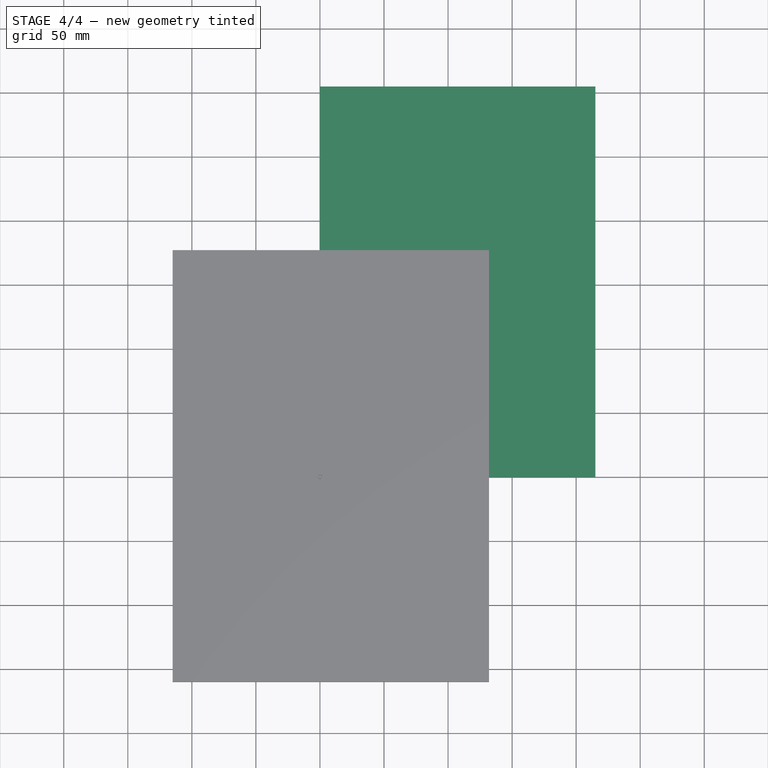
[diagram: stage 4 of 4 — top view after this stage's code; geometry added in this stage tinted green]
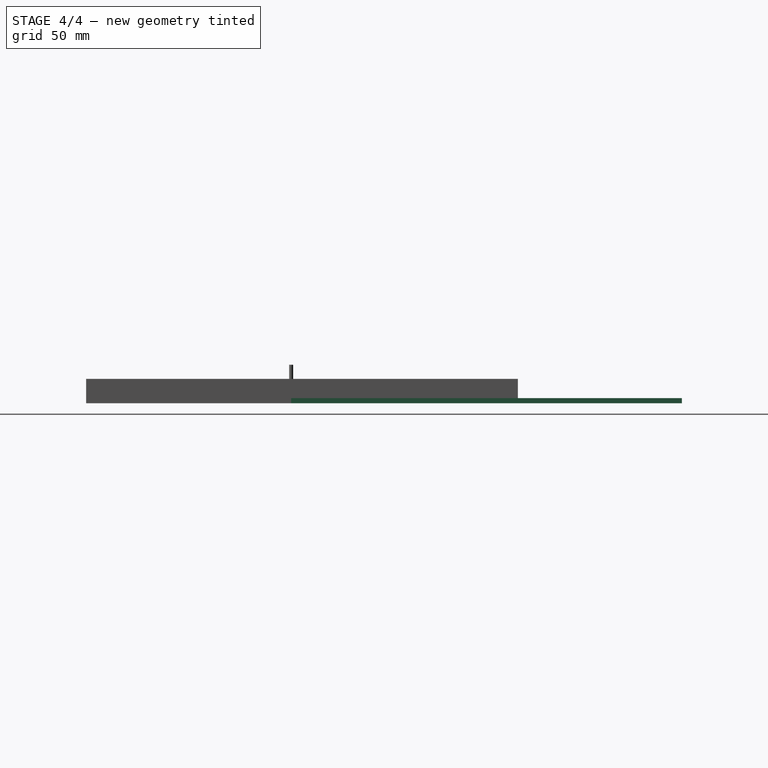
[diagram: stage 4 of 4 — right view after this stage's code; geometry added in this stage tinted green]
FEATURE [PartDesign::SubShapeBinder] Binder001
  BindCopyOnChange = 0
  BindMode = 0
  ClaimChildren = true
  Context = -> Body002 [Binder001.]
  Fuse = false
  MakeFace = false
  OffsetFill = false
  OffsetIntersection = false
  OffsetJoinType = 0
  OffsetOpenResult = false
  PartialLoad = false
  Relative = false
  Support = -> [Populate002]
  _Version = 2
FEATURE [PartDesign::Hole] Hole
  BaseFeature = -> Pad002
  CustomThreadClearance = 0
  Depth = 25
  DepthType = 0
  Diameter = 14
  DrillForDepth = false
  DrillPoint = 1
  DrillPointAngle = 118
  HoleCutCountersinkAngle = 90
  HoleCutCustomValues = false
  HoleCutDepth = 0
  HoleCutDiameter = 6.1
  HoleCutType = 0
  ModelThread = false
  Profile = -> Binder001
  Reversed = true
  Tapered = false
  TaperedAngle = 90
  ThreadClass = 0
  ThreadDepth = 25
  ThreadDepthType = 0
  ThreadDirection = 0
  ThreadFit = 0
  ThreadSize = 0
  ThreadType = 0
  Threaded = false
  UseCustomThreadClearance = false
FEATURE [PartDesign::Body] Body002
  Group = -> [Binder,Pad002,Binder001,Hole]
  Origin = -> Origin002
  Tip = -> Hole
FEATURE [App::FeaturePython] SetupSheet  # Path/CAM operation (typed FeaturePython)
  ClearanceHeightExpression = OpStockZMax+SetupSheet.ClearanceHeightOffset
  ClearanceHeightOffset = 5
  CoolantMode = 0
  CoolantModes = None | Flood | Mist
  FinalDepthExpression = -0.1 mm
  HorizRapid = 0
  ProfileDirection = 1
  ProfileSide = 0
  ProfileUseComp = true
  ProfileprocessCircles = true
  ProfileprocessHoles = true
  ProfileprocessPerimeter = true
  SafeHeightExpression = OpStockZMax+SetupSheet.SafeHeightOffset
  SafeHeightOffset = 3
  StartDepthExpression = 3 mm
  StepDownExpression = 4 mm
  VertRapid = 0
FEATURE [Part::FeaturePython] Clone  label="Model-Body002"  # Draft clone (typed FeaturePython)
  AttacherType = Attacher::AttachEngine3D
  Fuse = false
  Objects = -> [Body002]
  PathResource = Model
  Placement = pos=(107,152,0) rot=(0,0,1;0rad)
  Scale = (1,1,1)
FEATURE [Path::FeaturePython] __175mm_Endmill  label="3.175mm Endmill001"  # Path/CAM operation (typed FeaturePython)
  HorizFeed = 33.3333
  HorizRapid = 0
  SpindleDir = 0
  SpindleSpeed = 18000
  Tool = -> ToolBit
  ToolNumber = 1
  VertFeed = 8.33333
  VertRapid = 0
  expr: HorizRapid = SetupSheet.HorizRapid
  expr: VertRapid = SetupSheet.VertRapid
FEATURE [App::DocumentObjectGroup] Tools
  Group = -> [__175mm_Endmill]
FEATURE [Part::FeaturePython] Stock  # WARN: FeaturePython — macro-defined, semantics opaque (R4)
  Base = -> Model
  ExtXneg = 0
  ExtXpos = 1
  ExtYneg = 0
  ExtYpos = 1
  ExtZneg = 0
  ExtZpos = 1
  StockType = FromBase
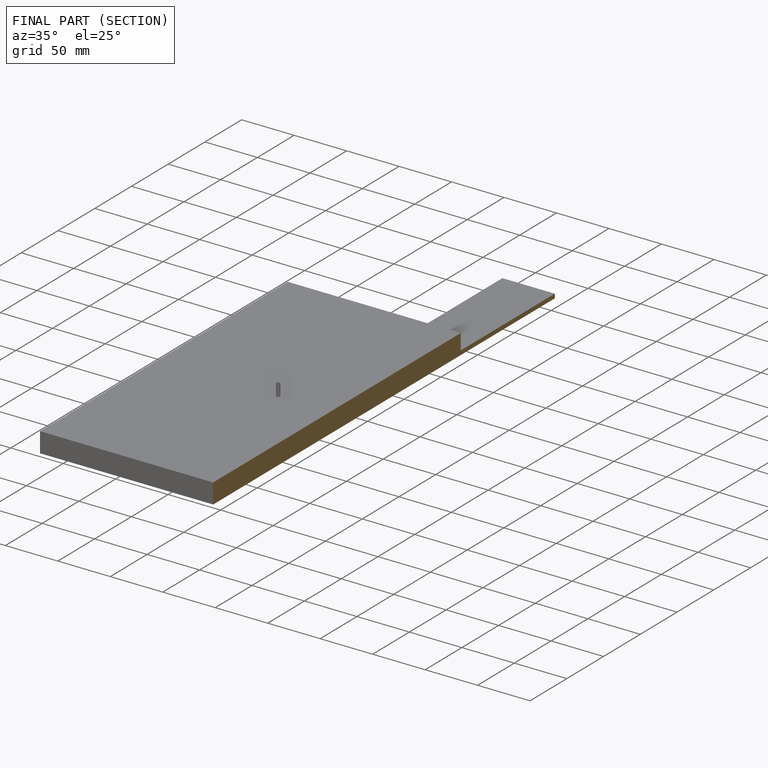
[diagram: finished part — half-section view (interior)]
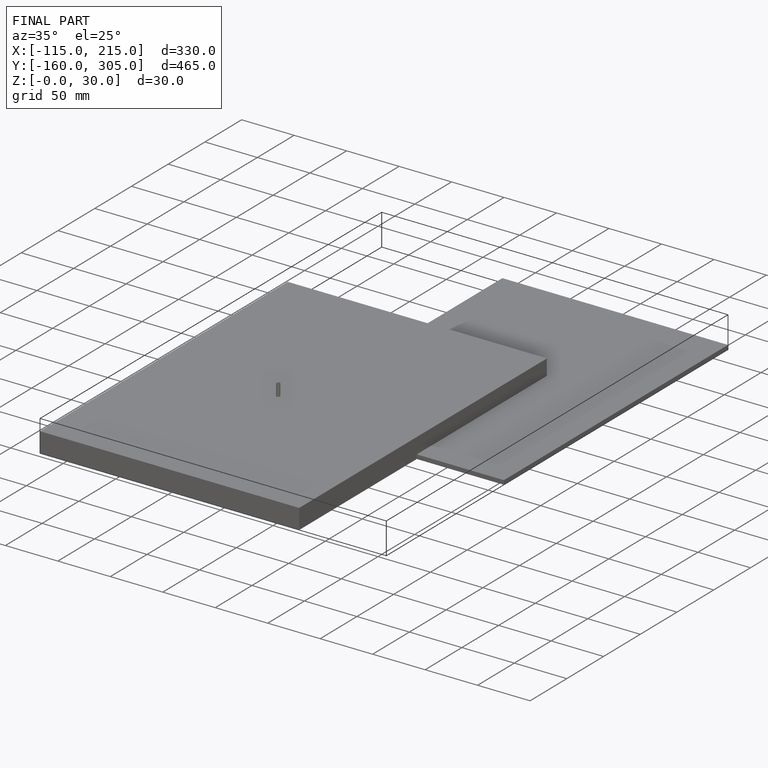
[diagram: finished part — iso view with bounding-box wireframe]
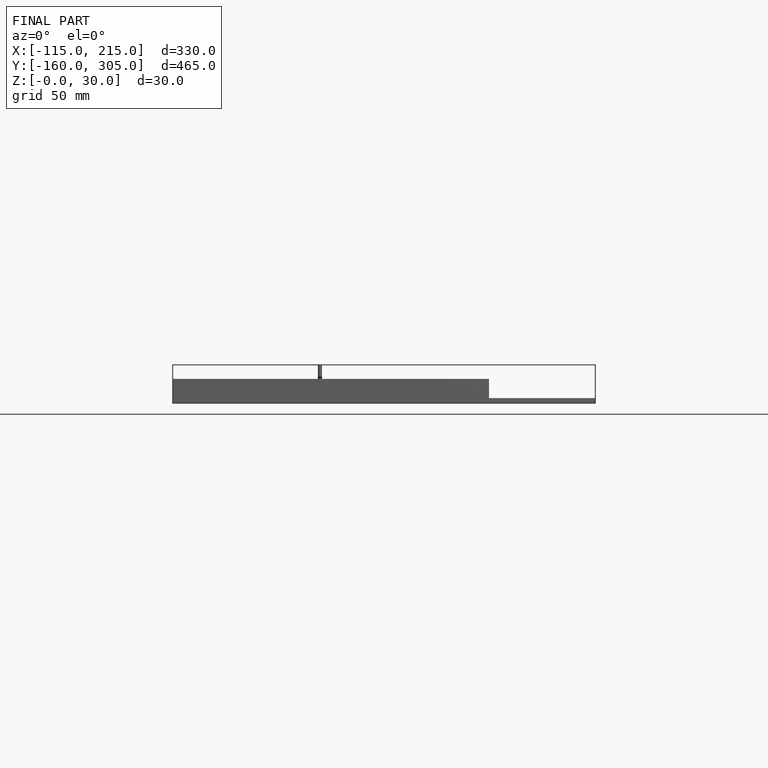
[diagram: finished part — front view with bounding-box wireframe]
